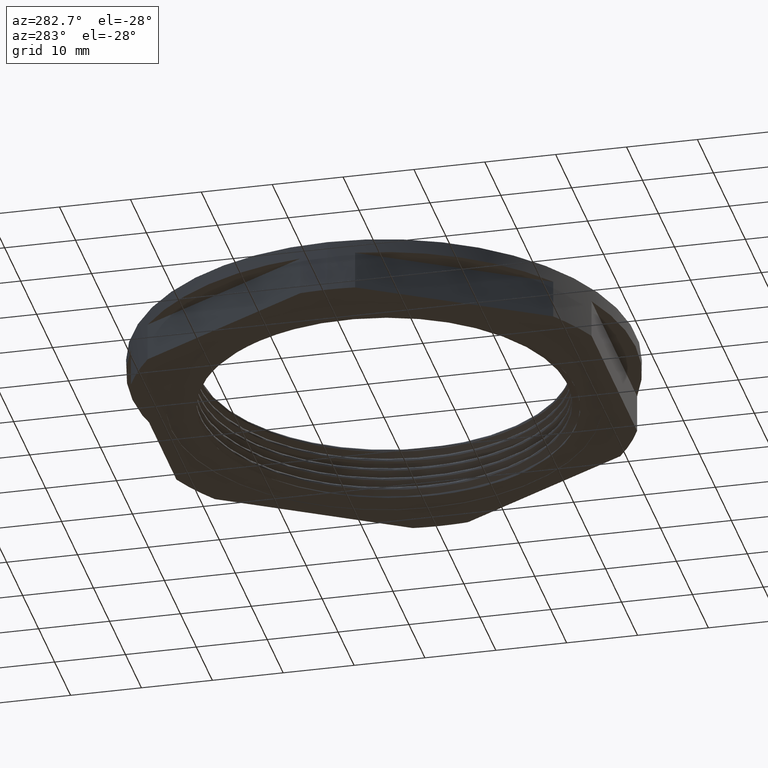
[diagram: clean part render]
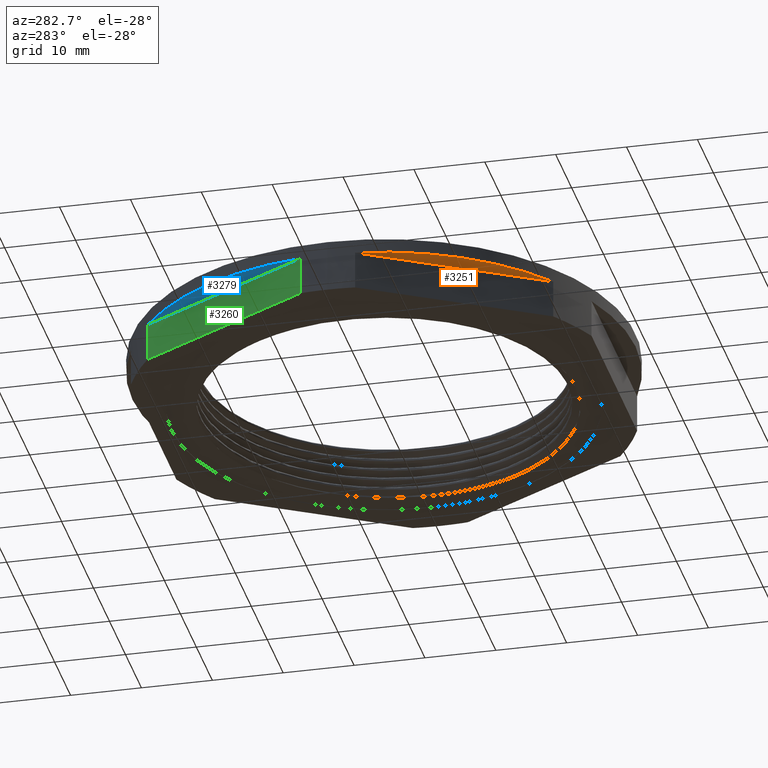
[diagram: same view with three faces highlighted in distinct colors, each labeled with its STEP entity id]
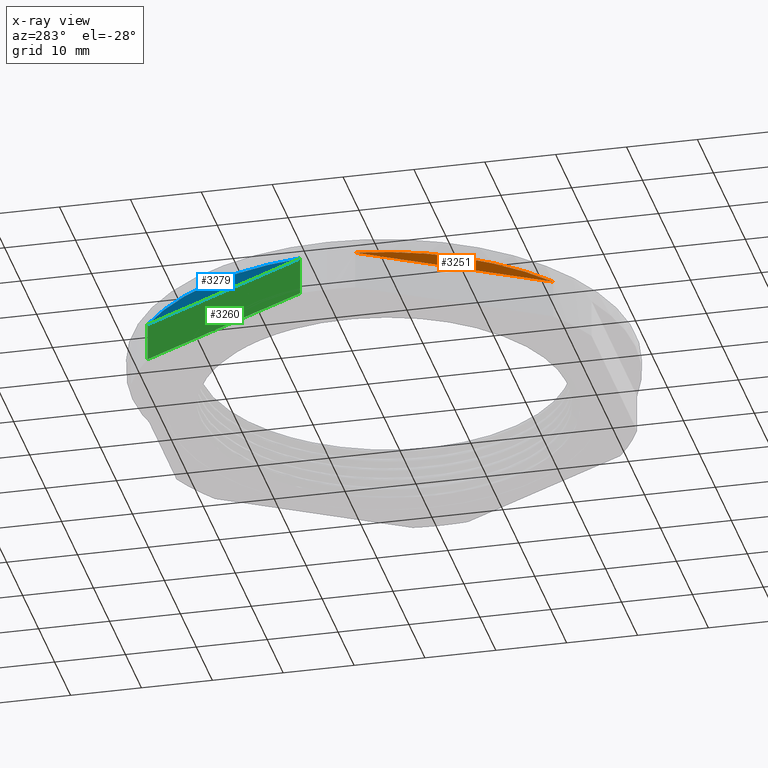
[diagram: x-ray of the same camera — body ghosted, the three highlighted faces saturated]
A machine part, auxiliary view with three faces highlighted in distinct colors.
The next image is the same camera in x-ray (body ghosted, the three faces saturated) — at least one of them is partly hidden behind the body in this view.
Their STEP definitions:

[orange] entity #3251 — the highlighted planar face has unit normal (0, 0, 1).
#86 = VERTEX_POINT ( 'NONE', #150 ) ;
#115 = VERTEX_POINT ( 'NONE', #209 ) ;
#150 = CARTESIAN_POINT ( 'NONE',  ( -35.28725405153711100, -3.880683123147039600, 5.400000000000000400 ) ) ;
#204 = PLANE ( 'NONE',  #3425 ) ;
#209 = CARTESIAN_POINT ( 'NONE',  ( -21.00439719445142100, -28.61931687685298400, 5.399999999999999500 ) ) ;
#260 = FACE_OUTER_BOUND ( 'NONE', #403, .T. ) ;
#261 = DIRECTION ( 'NONE',  ( 1.000000000000000000, 0.0000000000000000000, -0.0000000000000000000 ) ) ;
#266 = DIRECTION ( 'NONE',  ( 0.0000000000000000000, 0.0000000000000000000, 1.000000000000000000 ) ) ;
#283 = CARTESIAN_POINT ( 'NONE',  ( 0.0000000000000000000, 0.0000000000000000000, 5.400000000000000400 ) ) ;
#403 = EDGE_LOOP ( 'NONE', ( #447, #438 ) ) ;
#438 = ORIENTED_EDGE ( 'NONE', *, *, #3343, .F. ) ;
#447 = ORIENTED_EDGE ( 'NONE', *, *, #3334, .T. ) ;
#1685 = LINE ( 'NONE', #1688, #3461 ) ;
#1688 = CARTESIAN_POINT ( 'NONE',  ( -37.52776749732568400, -7.187213879639117000E-015, 5.399999999999999500 ) ) ;
#1709 = DIRECTION ( 'NONE',  ( 0.5000000000000001100, -0.8660254037844386000, -0.0000000000000000000 ) ) ;
#1793 = CARTESIAN_POINT ( 'NONE',  ( 0.0000000000000000000, 0.0000000000000000000, 5.400000000000000400 ) ) ;
#1845 = DIRECTION ( 'NONE',  ( 0.0000000000000000000, 0.0000000000000000000, 1.000000000000000000 ) ) ;
#1846 = DIRECTION ( 'NONE',  ( 1.000000000000000000, 0.0000000000000000000, 0.0000000000000000000 ) ) ;
#3251 = ADVANCED_FACE ( 'NONE', ( #260 ), #204, .F. ) ;
#3334 = EDGE_CURVE ( 'NONE', #86, #115, #1685, .T. ) ;
#3343 = EDGE_CURVE ( 'NONE', #86, #115, #3531, .T. ) ;
#3425 = AXIS2_PLACEMENT_3D ( 'NONE', #283, #266, #261 ) ;
#3461 = VECTOR ( 'NONE', #1709, 1000.000000000000100 ) ;
#3516 = AXIS2_PLACEMENT_3D ( 'NONE', #1793, #1845, #1846 ) ;
#3531 = CIRCLE ( 'NONE', #3516, 35.50000000000001400 ) ;

[blue] entity #3279 — the highlighted planar face has unit normal (0, 0, 1).
#126 = VERTEX_POINT ( 'NONE', #182 ) ;
#148 = VERTEX_POINT ( 'NONE', #212 ) ;
#182 = CARTESIAN_POINT ( 'NONE',  ( -35.28725405153711800, 3.880683123147014200, 5.400000000000000400 ) ) ;
#212 = CARTESIAN_POINT ( 'NONE',  ( -21.00439719445142100, 28.61931687685298400, 5.400000000000000400 ) ) ;
#364 = EDGE_LOOP ( 'NONE', ( #422, #427 ) ) ;
#422 = ORIENTED_EDGE ( 'NONE', *, *, #3352, .T. ) ;
#427 = ORIENTED_EDGE ( 'NONE', *, *, #3361, .F. ) ;
#2024 = DIRECTION ( 'NONE',  ( -0.4999999999999997200, -0.8660254037844387100, -0.0000000000000000000 ) ) ;
#2026 = CARTESIAN_POINT ( 'NONE',  ( -18.76388374866284200, 32.50000000000002100, 5.400000000000000400 ) ) ;
#2032 = LINE ( 'NONE', #2026, #3549 ) ;
#2051 = DIRECTION ( 'NONE',  ( 0.0000000000000000000, 0.0000000000000000000, 1.000000000000000000 ) ) ;
#2054 = CARTESIAN_POINT ( 'NONE',  ( 0.0000000000000000000, 0.0000000000000000000, 5.400000000000000400 ) ) ;
#2057 = DIRECTION ( 'NONE',  ( 1.000000000000000000, 0.0000000000000000000, 0.0000000000000000000 ) ) ;
#3039 = CARTESIAN_POINT ( 'NONE',  ( 0.0000000000000000000, 0.0000000000000000000, 5.400000000000000400 ) ) ;
#3046 = DIRECTION ( 'NONE',  ( 1.000000000000000000, 0.0000000000000000000, -0.0000000000000000000 ) ) ;
#3054 = FACE_OUTER_BOUND ( 'NONE', #364, .T. ) ;
#3060 = PLANE ( 'NONE',  #3452 ) ;
#3061 = DIRECTION ( 'NONE',  ( 0.0000000000000000000, 0.0000000000000000000, 1.000000000000000000 ) ) ;
#3279 = ADVANCED_FACE ( 'NONE', ( #3054 ), #3060, .F. ) ;
#3352 = EDGE_CURVE ( 'NONE', #148, #126, #2032, .T. ) ;
#3361 = EDGE_CURVE ( 'NONE', #148, #126, #3526, .T. ) ;
#3452 = AXIS2_PLACEMENT_3D ( 'NONE', #3039, #3061, #3046 ) ;
#3504 = AXIS2_PLACEMENT_3D ( 'NONE', #2054, #2051, #2057 ) ;
#3526 = CIRCLE ( 'NONE', #3504, 35.50000000000001400 ) ;
#3549 = VECTOR ( 'NONE', #2024, 1000.000000000000100 ) ;

[green] entity #3260 — the highlighted planar face has unit normal (0.866, -0.5, 0).
#107 = VERTEX_POINT ( 'NONE', #180 ) ;
#126 = VERTEX_POINT ( 'NONE', #182 ) ;
#139 = VERTEX_POINT ( 'NONE', #223 ) ;
#148 = VERTEX_POINT ( 'NONE', #212 ) ;
#180 = CARTESIAN_POINT ( 'NONE',  ( -21.00439719445141400, 28.61931687685298800, 0.0000000000000000000 ) ) ;
#182 = CARTESIAN_POINT ( 'NONE',  ( -35.28725405153711800, 3.880683123147014200, 5.400000000000000400 ) ) ;
#212 = CARTESIAN_POINT ( 'NONE',  ( -21.00439719445142100, 28.61931687685298400, 5.400000000000000400 ) ) ;
#223 = CARTESIAN_POINT ( 'NONE',  ( -35.28725405153712600, 3.880683123146992900, 0.0000000000000000000 ) ) ;
#233 = FACE_OUTER_BOUND ( 'NONE', #368, .T. ) ;
#234 = PLANE ( 'NONE',  #3457 ) ;
#250 = CARTESIAN_POINT ( 'NONE',  ( -18.76388374866284200, 32.50000000000002100, 7.400000000000000400 ) ) ;
#251 = DIRECTION ( 'NONE',  ( 0.4999999999999997200, 0.8660254037844387100, 0.0000000000000000000 ) ) ;
#274 = DIRECTION ( 'NONE',  ( 0.8660254037844388200, -0.4999999999999997800, 0.0000000000000000000 ) ) ;
#368 = EDGE_LOOP ( 'NONE', ( #454, #406, #411, #412 ) ) ;
#406 = ORIENTED_EDGE ( 'NONE', *, *, #3387, .T. ) ;
#411 = ORIENTED_EDGE ( 'NONE', *, *, #3366, .F. ) ;
#412 = ORIENTED_EDGE ( 'NONE', *, *, #3352, .F. ) ;
#454 = ORIENTED_EDGE ( 'NONE', *, *, #3315, .F. ) ;
#839 = DIRECTION ( 'NONE',  ( -0.4999999999999996100, -0.8660254037844389300, 0.0000000000000000000 ) ) ;
#844 = CARTESIAN_POINT ( 'NONE',  ( -21.00439719445141400, 28.61931687685297700, 0.0000000000000000000 ) ) ;
#855 = LINE ( 'NONE', #844, #3511 ) ;
#2024 = DIRECTION ( 'NONE',  ( -0.4999999999999997200, -0.8660254037844387100, -0.0000000000000000000 ) ) ;
#2026 = CARTESIAN_POINT ( 'NONE',  ( -18.76388374866284200, 32.50000000000002100, 5.400000000000000400 ) ) ;
#2032 = LINE ( 'NONE', #2026, #3549 ) ;
#2092 = CARTESIAN_POINT ( 'NONE',  ( -35.28725405153711800, 3.880683123147004000, -7.000000000000002700 ) ) ;
#2108 = DIRECTION ( 'NONE',  ( -0.0000000000000000000, -0.0000000000000000000, -1.000000000000000000 ) ) ;
#2109 = LINE ( 'NONE', #2092, #3556 ) ;
#2245 = DIRECTION ( 'NONE',  ( 0.0000000000000000000, 0.0000000000000000000, 1.000000000000000000 ) ) ;
#2260 = CARTESIAN_POINT ( 'NONE',  ( -21.00439719445141400, 28.61931687685298800, -7.000000000000002700 ) ) ;
#2261 = LINE ( 'NONE', #2260, #3472 ) ;
#3260 = ADVANCED_FACE ( 'NONE', ( #233 ), #234, .F. ) ;
#3315 = EDGE_CURVE ( 'NONE', #107, #148, #2261, .T. ) ;
#3352 = EDGE_CURVE ( 'NONE', #148, #126, #2032, .T. ) ;
#3366 = EDGE_CURVE ( 'NONE', #126, #139, #2109, .T. ) ;
#3387 = EDGE_CURVE ( 'NONE', #107, #139, #855, .T. ) ;
#3457 = AXIS2_PLACEMENT_3D ( 'NONE', #250, #274, #251 ) ;
#3472 = VECTOR ( 'NONE', #2245, 1000.000000000000000 ) ;
#3511 = VECTOR ( 'NONE', #839, 1000.000000000000000 ) ;
#3549 = VECTOR ( 'NONE', #2024, 1000.000000000000100 ) ;
#3556 = VECTOR ( 'NONE', #2108, 1000.000000000000000 ) ;